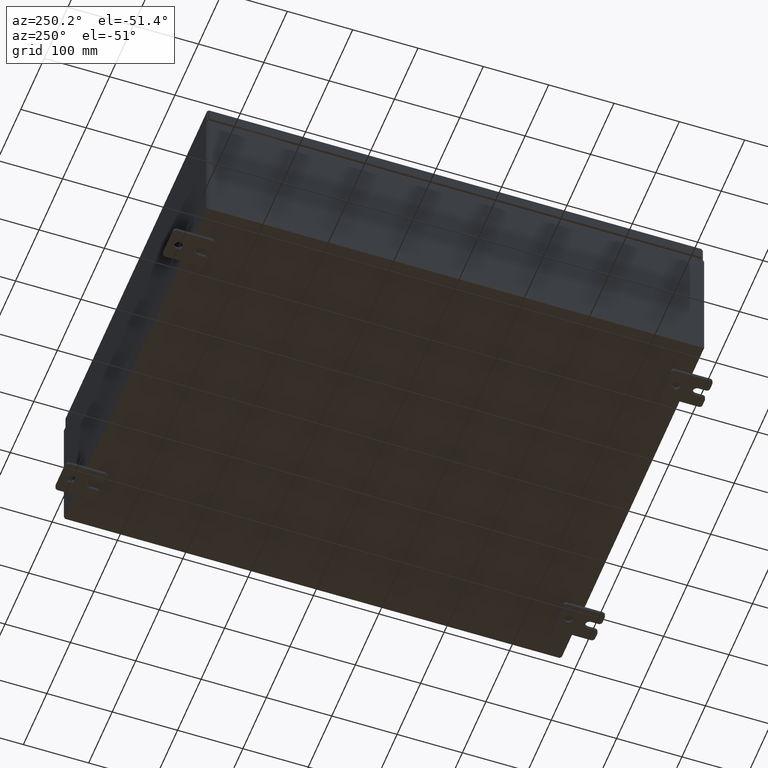
[diagram: clean part render]
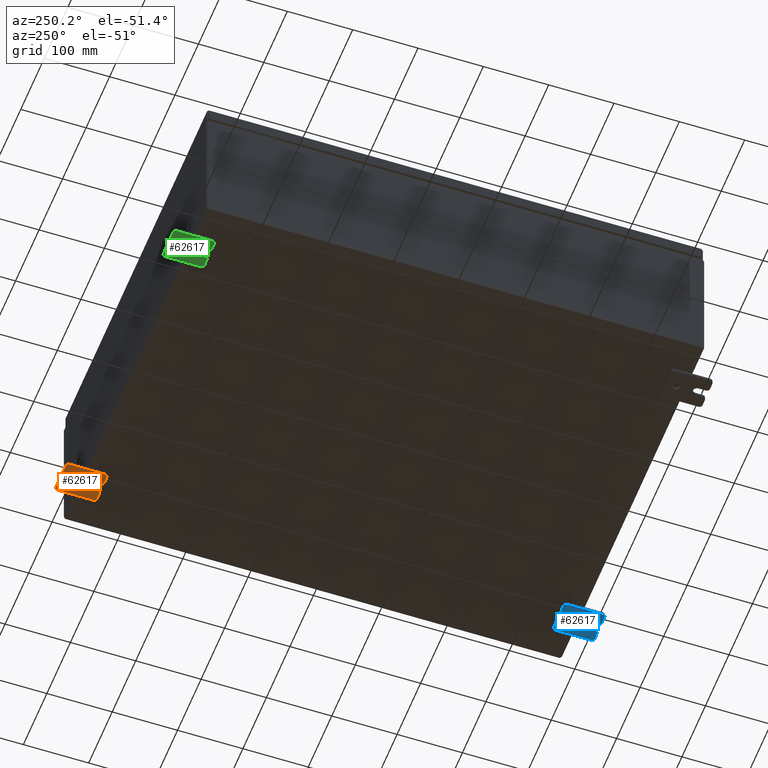
[diagram: same view with three faces highlighted in distinct colors, each labeled with its STEP entity id]
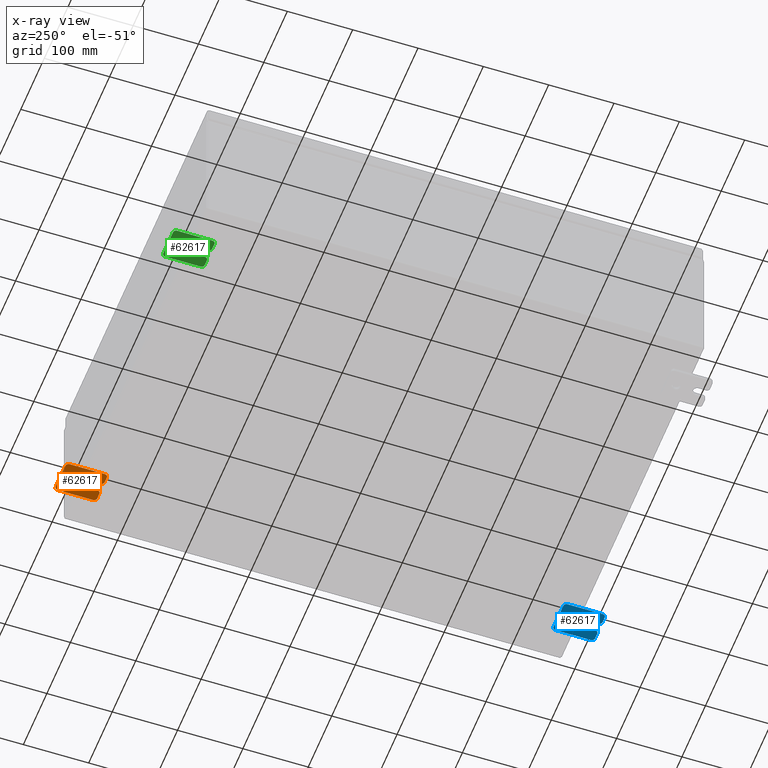
[diagram: x-ray of the same camera — body ghosted, the three highlighted faces saturated]
A machine part, auxiliary view with three faces highlighted in distinct colors.
The next image is the same camera in x-ray (body ghosted, the three faces saturated) — at least one of them is partly hidden behind the body in this view.
Their STEP definitions:

[orange] entity #62617 — the highlighted planar face has unit normal (0, 0, 1).
#1007 = VERTEX_POINT ( 'NONE', #50672 ) ;
#2225 = CARTESIAN_POINT ( 'NONE',  ( -0.1879999999999997800, -1.250000000000005300, -0.8100000000000047200 ) ) ;
#2516 = EDGE_CURVE ( 'NONE', #47488, #53210, #14438, .T. ) ;
#2639 = CARTESIAN_POINT ( 'NONE',  ( -0.1880000000000010000, 0.6249999999999992200, -7.703811342100550500E-020 ) ) ;
#2676 = LINE ( 'NONE', #61381, #29010 ) ;
#4414 = DIRECTION ( 'NONE',  ( 1.000000000000000000, 0.0000000000000000000, -0.0000000000000000000 ) ) ;
#4809 = DIRECTION ( 'NONE',  ( 0.0000000000000000000, 0.0000000000000000000, -1.000000000000000000 ) ) ;
#5173 = VECTOR ( 'NONE', #26957, 39.37007874015748100 ) ;
#5306 = ORIENTED_EDGE ( 'NONE', *, *, #18129, .T. ) ;
#7394 = EDGE_CURVE ( 'NONE', #47488, #57152, #41961, .T. ) ;
#7580 = ORIENTED_EDGE ( 'NONE', *, *, #7394, .F. ) ;
#7609 = DIRECTION ( 'NONE',  ( 0.0000000000000000000, 0.0000000000000000000, -1.000000000000000000 ) ) ;
#8769 = AXIS2_PLACEMENT_3D ( 'NONE', #56562, #26895, #61588 ) ;
#8836 = CIRCLE ( 'NONE', #17577, 0.1900000000000011100 ) ;
#9650 = CARTESIAN_POINT ( 'NONE',  ( -0.1879999999999997800, 1.249999999999994700, -0.8100000000000092700 ) ) ;
#9814 = LINE ( 'NONE', #56642, #5173 ) ;
#10873 = CARTESIAN_POINT ( 'NONE',  ( -0.1880000000000004700, -1.060000000000002100, 0.2500000000000005000 ) ) ;
#11141 = VERTEX_POINT ( 'NONE', #53411 ) ;
#12380 = CARTESIAN_POINT ( 'NONE',  ( -0.1880000000000004700, -1.060000000000003400, -0.2499999999999994400 ) ) ;
#12556 = EDGE_CURVE ( 'NONE', #63883, #53210, #41729, .T. ) ;
#12661 = VERTEX_POINT ( 'NONE', #54583 ) ;
#13274 = CARTESIAN_POINT ( 'NONE',  ( -0.1879999999999997800, -1.250000000000004700, -0.4400000000000002200 ) ) ;
#13285 = ORIENTED_EDGE ( 'NONE', *, *, #12556, .F. ) ;
#14295 = VECTOR ( 'NONE', #42339, 39.37007874015748100 ) ;
#14438 = CIRCLE ( 'NONE', #47600, 0.1900000000000011100 ) ;
#14565 = VERTEX_POINT ( 'NONE', #62106 ) ;
#15138 = VERTEX_POINT ( 'NONE', #36559 ) ;
#15191 = AXIS2_PLACEMENT_3D ( 'NONE', #53761, #4414, #38996 ) ;
#15707 = VECTOR ( 'NONE', #15777, 39.37007874015748100 ) ;
#15777 = DIRECTION ( 'NONE',  ( 0.0000000000000000000, 1.000000000000000000, -1.639108796198558100E-015 ) ) ;
#15941 = EDGE_CURVE ( 'NONE', #11141, #41435, #51791, .T. ) ;
#16320 = VERTEX_POINT ( 'NONE', #26924 ) ;
#16517 = CARTESIAN_POINT ( 'NONE',  ( -0.1879999999999997800, 1.249999999999997600, 0.9999999999999951200 ) ) ;
#16732 = ORIENTED_EDGE ( 'NONE', *, *, #29171, .F. ) ;
#17577 = AXIS2_PLACEMENT_3D ( 'NONE', #58009, #28290, #62989 ) ;
#18129 = EDGE_CURVE ( 'NONE', #25711, #14565, #55550, .T. ) ;
#18303 = DIRECTION ( 'NONE',  ( -1.000000000000000000, -0.0000000000000000000, 0.0000000000000000000 ) ) ;
#19077 = EDGE_CURVE ( 'NONE', #59416, #57152, #22175, .T. ) ;
#19525 = CARTESIAN_POINT ( 'NONE',  ( -0.1879999999999997800, 1.059999999999996300, 0.8099999999999938400 ) ) ;
#19680 = CARTESIAN_POINT ( 'NONE',  ( -0.1880000000000010000, 0.6249999999999992200, -7.703811342100550500E-020 ) ) ;
#20788 = VERTEX_POINT ( 'NONE', #12380 ) ;
#20830 = DIRECTION ( 'NONE',  ( -1.000000000000000000, 6.523827964459549700E-016, 5.163192708025532000E-017 ) ) ;
#20843 = CARTESIAN_POINT ( 'NONE',  ( -0.1879999999999997800, 1.249999999999997300, 0.8099999999999935000 ) ) ;
#21079 = VECTOR ( 'NONE', #21464, 39.37007874015748100 ) ;
#21304 = ORIENTED_EDGE ( 'NONE', *, *, #53263, .T. ) ;
#21317 = EDGE_CURVE ( 'NONE', #25711, #36538, #2676, .T. ) ;
#21464 = DIRECTION ( 'NONE',  ( 0.0000000000000000000, -1.000000000000000000, 1.639108796198558100E-015 ) ) ;
#21599 = CIRCLE ( 'NONE', #28476, 0.2499999999999999200 ) ;
#21857 = ORIENTED_EDGE ( 'NONE', *, *, #21317, .F. ) ;
#21893 = FACE_OUTER_BOUND ( 'NONE', #50632, .T. ) ;
#22160 = EDGE_CURVE ( 'NONE', #15138, #1007, #8836, .T. ) ;
#22175 = CIRCLE ( 'NONE', #8769, 0.1900000000000011100 ) ;
#24202 = ORIENTED_EDGE ( 'NONE', *, *, #62869, .F. ) ;
#24509 = DIRECTION ( 'NONE',  ( 0.0000000000000000000, 0.0000000000000000000, -1.000000000000000000 ) ) ;
#24667 = DIRECTION ( 'NONE',  ( 0.0000000000000000000, 0.0000000000000000000, -1.000000000000000000 ) ) ;
#25225 = ORIENTED_EDGE ( 'NONE', *, *, #22160, .T. ) ;
#25711 = VERTEX_POINT ( 'NONE', #10873 ) ;
#26080 = ORIENTED_EDGE ( 'NONE', *, *, #61835, .T. ) ;
#26895 = DIRECTION ( 'NONE',  ( -1.000000000000000000, -0.0000000000000000000, 0.0000000000000000000 ) ) ;
#26924 = CARTESIAN_POINT ( 'NONE',  ( -0.1880000000000001900, -0.6249999999999992200, -0.2499999999999998600 ) ) ;
#26957 = DIRECTION ( 'NONE',  ( 0.0000000000000000000, -1.639108796198553600E-015, -1.000000000000000000 ) ) ;
#27009 = CARTESIAN_POINT ( 'NONE',  ( -0.1879999999999997800, -1.250000000000005600, -1.000000000000006200 ) ) ;
#28290 = DIRECTION ( 'NONE',  ( -1.000000000000000000, -0.0000000000000000000, 0.0000000000000000000 ) ) ;
#28476 = AXIS2_PLACEMENT_3D ( 'NONE', #2639, #37231, #7609 ) ;
#29010 = VECTOR ( 'NONE', #31657, 39.37007874015748100 ) ;
#29171 = EDGE_CURVE ( 'NONE', #15138, #14565, #9814, .T. ) ;
#29236 = DIRECTION ( 'NONE',  ( 0.0000000000000000000, -1.639108796198553600E-015, -1.000000000000000000 ) ) ;
#30294 = ORIENTED_EDGE ( 'NONE', *, *, #2516, .T. ) ;
#30743 = ORIENTED_EDGE ( 'NONE', *, *, #63049, .F. ) ;
#31656 = CARTESIAN_POINT ( 'NONE',  ( -0.1880000000000010000, 0.6249999999999992200, 0.2499999999999999200 ) ) ;
#31657 = DIRECTION ( 'NONE',  ( 6.556435184794182400E-016, 1.000000000000000000, 0.0000000000000000000 ) ) ;
#32814 = AXIS2_PLACEMENT_3D ( 'NONE', #64140, #34405, #4809 ) ;
#33956 = EDGE_LOOP ( 'NONE', ( #37530, #21304 ) ) ;
#34226 = DIRECTION ( 'NONE',  ( -1.000000000000000000, -0.0000000000000000000, 0.0000000000000000000 ) ) ;
#34335 = EDGE_CURVE ( 'NONE', #59416, #48243, #62149, .T. ) ;
#34405 = DIRECTION ( 'NONE',  ( -1.000000000000000000, -0.0000000000000000000, 0.0000000000000000000 ) ) ;
#35183 = CARTESIAN_POINT ( 'NONE',  ( -0.1879999999999997800, -1.060000000000004500, -1.000000000000006400 ) ) ;
#36538 = VERTEX_POINT ( 'NONE', #44062 ) ;
#36559 = CARTESIAN_POINT ( 'NONE',  ( -0.1879999999999997800, -1.250000000000002400, 0.8099999999999980500 ) ) ;
#37231 = DIRECTION ( 'NONE',  ( 1.000000000000000000, -0.0000000000000000000, -5.163192708025532000E-017 ) ) ;
#37327 = CARTESIAN_POINT ( 'NONE',  ( -0.1880000000000001900, -0.6249999999999992200, -0.2499999999999993900 ) ) ;
#37530 = ORIENTED_EDGE ( 'NONE', *, *, #15941, .T. ) ;
#38309 = AXIS2_PLACEMENT_3D ( 'NONE', #50483, #20830, #55480 ) ;
#38494 = AXIS2_PLACEMENT_3D ( 'NONE', #19680, #54329, #24667 ) ;
#38769 = ORIENTED_EDGE ( 'NONE', *, *, #46609, .T. ) ;
#38996 = DIRECTION ( 'NONE',  ( -0.0000000000000000000, 0.0000000000000000000, -1.000000000000000000 ) ) ;
#40557 = LINE ( 'NONE', #37327, #14295 ) ;
#41230 = CARTESIAN_POINT ( 'NONE',  ( -0.1879999999999997800, 1.059999999999993400, -1.000000000000010000 ) ) ;
#41435 = VERTEX_POINT ( 'NONE', #31656 ) ;
#41729 = LINE ( 'NONE', #54137, #54951 ) ;
#41961 = LINE ( 'NONE', #27009, #15707 ) ;
#42036 = AXIS2_PLACEMENT_3D ( 'NONE', #19525, #54173, #24509 ) ;
#42339 = DIRECTION ( 'NONE',  ( -6.556435184794182400E-016, -1.000000000000000000, -1.639108796198545600E-016 ) ) ;
#43147 = ORIENTED_EDGE ( 'NONE', *, *, #19077, .T. ) ;
#44062 = CARTESIAN_POINT ( 'NONE',  ( -0.1880000000000001900, -0.6249999999999992200, 0.2500000000000005000 ) ) ;
#45919 = CIRCLE ( 'NONE', #32814, 0.1900000000000011100 ) ;
#46278 = ORIENTED_EDGE ( 'NONE', *, *, #34335, .F. ) ;
#46609 = EDGE_CURVE ( 'NONE', #63883, #20788, #45919, .T. ) ;
#46729 = CIRCLE ( 'NONE', #42036, 0.1900000000000011100 ) ;
#47408 = LINE ( 'NONE', #16517, #21079 ) ;
#47488 = VERTEX_POINT ( 'NONE', #35183 ) ;
#47600 = AXIS2_PLACEMENT_3D ( 'NONE', #60352, #34226, #52341 ) ;
#47979 = CARTESIAN_POINT ( 'NONE',  ( -0.1879999999999997800, -1.060000000000002100, 0.4400000000000016700 ) ) ;
#48243 = VERTEX_POINT ( 'NONE', #20843 ) ;
#48944 = VECTOR ( 'NONE', #48948, 39.37007874015748100 ) ;
#48948 = DIRECTION ( 'NONE',  ( 0.0000000000000000000, 1.639108796198553600E-015, 1.000000000000000000 ) ) ;
#50483 = CARTESIAN_POINT ( 'NONE',  ( -0.1880000000000001900, -0.6249999999999992200, 6.829619984160658000E-017 ) ) ;
#50632 = EDGE_LOOP ( 'NONE', ( #16732, #25225, #30743, #26080, #46278, #43147, #7580, #30294, #13285, #38769, #55910, #24202, #21857, #5306 ) ) ;
#50672 = CARTESIAN_POINT ( 'NONE',  ( -0.1879999999999997800, -1.060000000000001200, 0.9999999999999988900 ) ) ;
#51791 = CIRCLE ( 'NONE', #38494, 0.2499999999999999200 ) ;
#52075 = CIRCLE ( 'NONE', #38309, 0.2499999999999999200 ) ;
#52341 = DIRECTION ( 'NONE',  ( 0.0000000000000000000, 0.0000000000000000000, -1.000000000000000000 ) ) ;
#52962 = DIRECTION ( 'NONE',  ( 0.0000000000000000000, 0.0000000000000000000, -1.000000000000000000 ) ) ;
#53210 = VERTEX_POINT ( 'NONE', #2225 ) ;
#53263 = EDGE_CURVE ( 'NONE', #41435, #11141, #21599, .T. ) ;
#53411 = CARTESIAN_POINT ( 'NONE',  ( -0.1880000000000010000, 0.6249999999999992200, -0.2499999999999999200 ) ) ;
#53761 = CARTESIAN_POINT ( 'NONE',  ( -0.1879999999999997800, 0.0000000000000000000, 0.0000000000000000000 ) ) ;
#53927 = CARTESIAN_POINT ( 'NONE',  ( -0.1879999999999997800, 1.249999999999994200, -1.000000000000010400 ) ) ;
#54137 = CARTESIAN_POINT ( 'NONE',  ( -0.1879999999999997800, -1.250000000000002200, 0.9999999999999992200 ) ) ;
#54173 = DIRECTION ( 'NONE',  ( -1.000000000000000000, -0.0000000000000000000, 0.0000000000000000000 ) ) ;
#54329 = DIRECTION ( 'NONE',  ( 1.000000000000000000, -0.0000000000000000000, -5.163192708025532000E-017 ) ) ;
#54583 = CARTESIAN_POINT ( 'NONE',  ( -0.1879999999999997800, 1.059999999999996500, 0.9999999999999953400 ) ) ;
#54951 = VECTOR ( 'NONE', #29236, 39.37007874015748100 ) ;
#55480 = DIRECTION ( 'NONE',  ( -6.829619984160660000E-016, -1.000000000000000000, 0.0000000000000000000 ) ) ;
#55550 = CIRCLE ( 'NONE', #55627, 0.1900000000000011400 ) ;
#55627 = AXIS2_PLACEMENT_3D ( 'NONE', #47979, #18303, #52962 ) ;
#55910 = ORIENTED_EDGE ( 'NONE', *, *, #59083, .F. ) ;
#56562 = CARTESIAN_POINT ( 'NONE',  ( -0.1879999999999997800, 1.059999999999993600, -0.8100000000000089400 ) ) ;
#56642 = CARTESIAN_POINT ( 'NONE',  ( -0.1879999999999997800, -1.250000000000002200, 0.9999999999999992200 ) ) ;
#57152 = VERTEX_POINT ( 'NONE', #41230 ) ;
#58009 = CARTESIAN_POINT ( 'NONE',  ( -0.1879999999999997800, -1.060000000000001600, 0.8099999999999978300 ) ) ;
#59083 = EDGE_CURVE ( 'NONE', #16320, #20788, #40557, .T. ) ;
#59416 = VERTEX_POINT ( 'NONE', #9650 ) ;
#60352 = CARTESIAN_POINT ( 'NONE',  ( -0.1879999999999997800, -1.060000000000004100, -0.8100000000000050500 ) ) ;
#61381 = CARTESIAN_POINT ( 'NONE',  ( -0.1880000000000005800, -1.250000000000003800, 0.2500000000000005000 ) ) ;
#61588 = DIRECTION ( 'NONE',  ( 0.0000000000000000000, 0.0000000000000000000, -1.000000000000000000 ) ) ;
#61835 = EDGE_CURVE ( 'NONE', #12661, #48243, #46729, .T. ) ;
#62106 = CARTESIAN_POINT ( 'NONE',  ( -0.1879999999999997800, -1.250000000000003100, 0.4400000000000020000 ) ) ;
#62149 = LINE ( 'NONE', #53927, #48944 ) ;
#62617 = ADVANCED_FACE ( 'NONE', ( #63002, #21893 ), #63756, .F. ) ;
#62869 = EDGE_CURVE ( 'NONE', #36538, #16320, #52075, .T. ) ;
#62989 = DIRECTION ( 'NONE',  ( 0.0000000000000000000, 7.189073667537492800E-016, -1.000000000000000000 ) ) ;
#63002 = FACE_BOUND ( 'NONE', #33956, .T. ) ;
#63049 = EDGE_CURVE ( 'NONE', #12661, #1007, #47408, .T. ) ;
#63756 = PLANE ( 'NONE',  #15191 ) ;
#63883 = VERTEX_POINT ( 'NONE', #13274 ) ;
#64140 = CARTESIAN_POINT ( 'NONE',  ( -0.1879999999999997800, -1.060000000000003400, -0.4400000000000005000 ) ) ;

[blue] entity #62617 — the highlighted planar face has unit normal (0, 0, 1).
#1007 = VERTEX_POINT ( 'NONE', #50672 ) ;
#2225 = CARTESIAN_POINT ( 'NONE',  ( -0.1879999999999997800, -1.250000000000005300, -0.8100000000000047200 ) ) ;
#2516 = EDGE_CURVE ( 'NONE', #47488, #53210, #14438, .T. ) ;
#2639 = CARTESIAN_POINT ( 'NONE',  ( -0.1880000000000010000, 0.6249999999999992200, -7.703811342100550500E-020 ) ) ;
#2676 = LINE ( 'NONE', #61381, #29010 ) ;
#4414 = DIRECTION ( 'NONE',  ( 1.000000000000000000, 0.0000000000000000000, -0.0000000000000000000 ) ) ;
#4809 = DIRECTION ( 'NONE',  ( 0.0000000000000000000, 0.0000000000000000000, -1.000000000000000000 ) ) ;
#5173 = VECTOR ( 'NONE', #26957, 39.37007874015748100 ) ;
#5306 = ORIENTED_EDGE ( 'NONE', *, *, #18129, .T. ) ;
#7394 = EDGE_CURVE ( 'NONE', #47488, #57152, #41961, .T. ) ;
#7580 = ORIENTED_EDGE ( 'NONE', *, *, #7394, .F. ) ;
#7609 = DIRECTION ( 'NONE',  ( 0.0000000000000000000, 0.0000000000000000000, -1.000000000000000000 ) ) ;
#8769 = AXIS2_PLACEMENT_3D ( 'NONE', #56562, #26895, #61588 ) ;
#8836 = CIRCLE ( 'NONE', #17577, 0.1900000000000011100 ) ;
#9650 = CARTESIAN_POINT ( 'NONE',  ( -0.1879999999999997800, 1.249999999999994700, -0.8100000000000092700 ) ) ;
#9814 = LINE ( 'NONE', #56642, #5173 ) ;
#10873 = CARTESIAN_POINT ( 'NONE',  ( -0.1880000000000004700, -1.060000000000002100, 0.2500000000000005000 ) ) ;
#11141 = VERTEX_POINT ( 'NONE', #53411 ) ;
#12380 = CARTESIAN_POINT ( 'NONE',  ( -0.1880000000000004700, -1.060000000000003400, -0.2499999999999994400 ) ) ;
#12556 = EDGE_CURVE ( 'NONE', #63883, #53210, #41729, .T. ) ;
#12661 = VERTEX_POINT ( 'NONE', #54583 ) ;
#13274 = CARTESIAN_POINT ( 'NONE',  ( -0.1879999999999997800, -1.250000000000004700, -0.4400000000000002200 ) ) ;
#13285 = ORIENTED_EDGE ( 'NONE', *, *, #12556, .F. ) ;
#14295 = VECTOR ( 'NONE', #42339, 39.37007874015748100 ) ;
#14438 = CIRCLE ( 'NONE', #47600, 0.1900000000000011100 ) ;
#14565 = VERTEX_POINT ( 'NONE', #62106 ) ;
#15138 = VERTEX_POINT ( 'NONE', #36559 ) ;
#15191 = AXIS2_PLACEMENT_3D ( 'NONE', #53761, #4414, #38996 ) ;
#15707 = VECTOR ( 'NONE', #15777, 39.37007874015748100 ) ;
#15777 = DIRECTION ( 'NONE',  ( 0.0000000000000000000, 1.000000000000000000, -1.639108796198558100E-015 ) ) ;
#15941 = EDGE_CURVE ( 'NONE', #11141, #41435, #51791, .T. ) ;
#16320 = VERTEX_POINT ( 'NONE', #26924 ) ;
#16517 = CARTESIAN_POINT ( 'NONE',  ( -0.1879999999999997800, 1.249999999999997600, 0.9999999999999951200 ) ) ;
#16732 = ORIENTED_EDGE ( 'NONE', *, *, #29171, .F. ) ;
#17577 = AXIS2_PLACEMENT_3D ( 'NONE', #58009, #28290, #62989 ) ;
#18129 = EDGE_CURVE ( 'NONE', #25711, #14565, #55550, .T. ) ;
#18303 = DIRECTION ( 'NONE',  ( -1.000000000000000000, -0.0000000000000000000, 0.0000000000000000000 ) ) ;
#19077 = EDGE_CURVE ( 'NONE', #59416, #57152, #22175, .T. ) ;
#19525 = CARTESIAN_POINT ( 'NONE',  ( -0.1879999999999997800, 1.059999999999996300, 0.8099999999999938400 ) ) ;
#19680 = CARTESIAN_POINT ( 'NONE',  ( -0.1880000000000010000, 0.6249999999999992200, -7.703811342100550500E-020 ) ) ;
#20788 = VERTEX_POINT ( 'NONE', #12380 ) ;
#20830 = DIRECTION ( 'NONE',  ( -1.000000000000000000, 6.523827964459549700E-016, 5.163192708025532000E-017 ) ) ;
#20843 = CARTESIAN_POINT ( 'NONE',  ( -0.1879999999999997800, 1.249999999999997300, 0.8099999999999935000 ) ) ;
#21079 = VECTOR ( 'NONE', #21464, 39.37007874015748100 ) ;
#21304 = ORIENTED_EDGE ( 'NONE', *, *, #53263, .T. ) ;
#21317 = EDGE_CURVE ( 'NONE', #25711, #36538, #2676, .T. ) ;
#21464 = DIRECTION ( 'NONE',  ( 0.0000000000000000000, -1.000000000000000000, 1.639108796198558100E-015 ) ) ;
#21599 = CIRCLE ( 'NONE', #28476, 0.2499999999999999200 ) ;
#21857 = ORIENTED_EDGE ( 'NONE', *, *, #21317, .F. ) ;
#21893 = FACE_OUTER_BOUND ( 'NONE', #50632, .T. ) ;
#22160 = EDGE_CURVE ( 'NONE', #15138, #1007, #8836, .T. ) ;
#22175 = CIRCLE ( 'NONE', #8769, 0.1900000000000011100 ) ;
#24202 = ORIENTED_EDGE ( 'NONE', *, *, #62869, .F. ) ;
#24509 = DIRECTION ( 'NONE',  ( 0.0000000000000000000, 0.0000000000000000000, -1.000000000000000000 ) ) ;
#24667 = DIRECTION ( 'NONE',  ( 0.0000000000000000000, 0.0000000000000000000, -1.000000000000000000 ) ) ;
#25225 = ORIENTED_EDGE ( 'NONE', *, *, #22160, .T. ) ;
#25711 = VERTEX_POINT ( 'NONE', #10873 ) ;
#26080 = ORIENTED_EDGE ( 'NONE', *, *, #61835, .T. ) ;
#26895 = DIRECTION ( 'NONE',  ( -1.000000000000000000, -0.0000000000000000000, 0.0000000000000000000 ) ) ;
#26924 = CARTESIAN_POINT ( 'NONE',  ( -0.1880000000000001900, -0.6249999999999992200, -0.2499999999999998600 ) ) ;
#26957 = DIRECTION ( 'NONE',  ( 0.0000000000000000000, -1.639108796198553600E-015, -1.000000000000000000 ) ) ;
#27009 = CARTESIAN_POINT ( 'NONE',  ( -0.1879999999999997800, -1.250000000000005600, -1.000000000000006200 ) ) ;
#28290 = DIRECTION ( 'NONE',  ( -1.000000000000000000, -0.0000000000000000000, 0.0000000000000000000 ) ) ;
#28476 = AXIS2_PLACEMENT_3D ( 'NONE', #2639, #37231, #7609 ) ;
#29010 = VECTOR ( 'NONE', #31657, 39.37007874015748100 ) ;
#29171 = EDGE_CURVE ( 'NONE', #15138, #14565, #9814, .T. ) ;
#29236 = DIRECTION ( 'NONE',  ( 0.0000000000000000000, -1.639108796198553600E-015, -1.000000000000000000 ) ) ;
#30294 = ORIENTED_EDGE ( 'NONE', *, *, #2516, .T. ) ;
#30743 = ORIENTED_EDGE ( 'NONE', *, *, #63049, .F. ) ;
#31656 = CARTESIAN_POINT ( 'NONE',  ( -0.1880000000000010000, 0.6249999999999992200, 0.2499999999999999200 ) ) ;
#31657 = DIRECTION ( 'NONE',  ( 6.556435184794182400E-016, 1.000000000000000000, 0.0000000000000000000 ) ) ;
#32814 = AXIS2_PLACEMENT_3D ( 'NONE', #64140, #34405, #4809 ) ;
#33956 = EDGE_LOOP ( 'NONE', ( #37530, #21304 ) ) ;
#34226 = DIRECTION ( 'NONE',  ( -1.000000000000000000, -0.0000000000000000000, 0.0000000000000000000 ) ) ;
#34335 = EDGE_CURVE ( 'NONE', #59416, #48243, #62149, .T. ) ;
#34405 = DIRECTION ( 'NONE',  ( -1.000000000000000000, -0.0000000000000000000, 0.0000000000000000000 ) ) ;
#35183 = CARTESIAN_POINT ( 'NONE',  ( -0.1879999999999997800, -1.060000000000004500, -1.000000000000006400 ) ) ;
#36538 = VERTEX_POINT ( 'NONE', #44062 ) ;
#36559 = CARTESIAN_POINT ( 'NONE',  ( -0.1879999999999997800, -1.250000000000002400, 0.8099999999999980500 ) ) ;
#37231 = DIRECTION ( 'NONE',  ( 1.000000000000000000, -0.0000000000000000000, -5.163192708025532000E-017 ) ) ;
#37327 = CARTESIAN_POINT ( 'NONE',  ( -0.1880000000000001900, -0.6249999999999992200, -0.2499999999999993900 ) ) ;
#37530 = ORIENTED_EDGE ( 'NONE', *, *, #15941, .T. ) ;
#38309 = AXIS2_PLACEMENT_3D ( 'NONE', #50483, #20830, #55480 ) ;
#38494 = AXIS2_PLACEMENT_3D ( 'NONE', #19680, #54329, #24667 ) ;
#38769 = ORIENTED_EDGE ( 'NONE', *, *, #46609, .T. ) ;
#38996 = DIRECTION ( 'NONE',  ( -0.0000000000000000000, 0.0000000000000000000, -1.000000000000000000 ) ) ;
#40557 = LINE ( 'NONE', #37327, #14295 ) ;
#41230 = CARTESIAN_POINT ( 'NONE',  ( -0.1879999999999997800, 1.059999999999993400, -1.000000000000010000 ) ) ;
#41435 = VERTEX_POINT ( 'NONE', #31656 ) ;
#41729 = LINE ( 'NONE', #54137, #54951 ) ;
#41961 = LINE ( 'NONE', #27009, #15707 ) ;
#42036 = AXIS2_PLACEMENT_3D ( 'NONE', #19525, #54173, #24509 ) ;
#42339 = DIRECTION ( 'NONE',  ( -6.556435184794182400E-016, -1.000000000000000000, -1.639108796198545600E-016 ) ) ;
#43147 = ORIENTED_EDGE ( 'NONE', *, *, #19077, .T. ) ;
#44062 = CARTESIAN_POINT ( 'NONE',  ( -0.1880000000000001900, -0.6249999999999992200, 0.2500000000000005000 ) ) ;
#45919 = CIRCLE ( 'NONE', #32814, 0.1900000000000011100 ) ;
#46278 = ORIENTED_EDGE ( 'NONE', *, *, #34335, .F. ) ;
#46609 = EDGE_CURVE ( 'NONE', #63883, #20788, #45919, .T. ) ;
#46729 = CIRCLE ( 'NONE', #42036, 0.1900000000000011100 ) ;
#47408 = LINE ( 'NONE', #16517, #21079 ) ;
#47488 = VERTEX_POINT ( 'NONE', #35183 ) ;
#47600 = AXIS2_PLACEMENT_3D ( 'NONE', #60352, #34226, #52341 ) ;
#47979 = CARTESIAN_POINT ( 'NONE',  ( -0.1879999999999997800, -1.060000000000002100, 0.4400000000000016700 ) ) ;
#48243 = VERTEX_POINT ( 'NONE', #20843 ) ;
#48944 = VECTOR ( 'NONE', #48948, 39.37007874015748100 ) ;
#48948 = DIRECTION ( 'NONE',  ( 0.0000000000000000000, 1.639108796198553600E-015, 1.000000000000000000 ) ) ;
#50483 = CARTESIAN_POINT ( 'NONE',  ( -0.1880000000000001900, -0.6249999999999992200, 6.829619984160658000E-017 ) ) ;
#50632 = EDGE_LOOP ( 'NONE', ( #16732, #25225, #30743, #26080, #46278, #43147, #7580, #30294, #13285, #38769, #55910, #24202, #21857, #5306 ) ) ;
#50672 = CARTESIAN_POINT ( 'NONE',  ( -0.1879999999999997800, -1.060000000000001200, 0.9999999999999988900 ) ) ;
#51791 = CIRCLE ( 'NONE', #38494, 0.2499999999999999200 ) ;
#52075 = CIRCLE ( 'NONE', #38309, 0.2499999999999999200 ) ;
#52341 = DIRECTION ( 'NONE',  ( 0.0000000000000000000, 0.0000000000000000000, -1.000000000000000000 ) ) ;
#52962 = DIRECTION ( 'NONE',  ( 0.0000000000000000000, 0.0000000000000000000, -1.000000000000000000 ) ) ;
#53210 = VERTEX_POINT ( 'NONE', #2225 ) ;
#53263 = EDGE_CURVE ( 'NONE', #41435, #11141, #21599, .T. ) ;
#53411 = CARTESIAN_POINT ( 'NONE',  ( -0.1880000000000010000, 0.6249999999999992200, -0.2499999999999999200 ) ) ;
#53761 = CARTESIAN_POINT ( 'NONE',  ( -0.1879999999999997800, 0.0000000000000000000, 0.0000000000000000000 ) ) ;
#53927 = CARTESIAN_POINT ( 'NONE',  ( -0.1879999999999997800, 1.249999999999994200, -1.000000000000010400 ) ) ;
#54137 = CARTESIAN_POINT ( 'NONE',  ( -0.1879999999999997800, -1.250000000000002200, 0.9999999999999992200 ) ) ;
#54173 = DIRECTION ( 'NONE',  ( -1.000000000000000000, -0.0000000000000000000, 0.0000000000000000000 ) ) ;
#54329 = DIRECTION ( 'NONE',  ( 1.000000000000000000, -0.0000000000000000000, -5.163192708025532000E-017 ) ) ;
#54583 = CARTESIAN_POINT ( 'NONE',  ( -0.1879999999999997800, 1.059999999999996500, 0.9999999999999953400 ) ) ;
#54951 = VECTOR ( 'NONE', #29236, 39.37007874015748100 ) ;
#55480 = DIRECTION ( 'NONE',  ( -6.829619984160660000E-016, -1.000000000000000000, 0.0000000000000000000 ) ) ;
#55550 = CIRCLE ( 'NONE', #55627, 0.1900000000000011400 ) ;
#55627 = AXIS2_PLACEMENT_3D ( 'NONE', #47979, #18303, #52962 ) ;
#55910 = ORIENTED_EDGE ( 'NONE', *, *, #59083, .F. ) ;
#56562 = CARTESIAN_POINT ( 'NONE',  ( -0.1879999999999997800, 1.059999999999993600, -0.8100000000000089400 ) ) ;
#56642 = CARTESIAN_POINT ( 'NONE',  ( -0.1879999999999997800, -1.250000000000002200, 0.9999999999999992200 ) ) ;
#57152 = VERTEX_POINT ( 'NONE', #41230 ) ;
#58009 = CARTESIAN_POINT ( 'NONE',  ( -0.1879999999999997800, -1.060000000000001600, 0.8099999999999978300 ) ) ;
#59083 = EDGE_CURVE ( 'NONE', #16320, #20788, #40557, .T. ) ;
#59416 = VERTEX_POINT ( 'NONE', #9650 ) ;
#60352 = CARTESIAN_POINT ( 'NONE',  ( -0.1879999999999997800, -1.060000000000004100, -0.8100000000000050500 ) ) ;
#61381 = CARTESIAN_POINT ( 'NONE',  ( -0.1880000000000005800, -1.250000000000003800, 0.2500000000000005000 ) ) ;
#61588 = DIRECTION ( 'NONE',  ( 0.0000000000000000000, 0.0000000000000000000, -1.000000000000000000 ) ) ;
#61835 = EDGE_CURVE ( 'NONE', #12661, #48243, #46729, .T. ) ;
#62106 = CARTESIAN_POINT ( 'NONE',  ( -0.1879999999999997800, -1.250000000000003100, 0.4400000000000020000 ) ) ;
#62149 = LINE ( 'NONE', #53927, #48944 ) ;
#62617 = ADVANCED_FACE ( 'NONE', ( #63002, #21893 ), #63756, .F. ) ;
#62869 = EDGE_CURVE ( 'NONE', #36538, #16320, #52075, .T. ) ;
#62989 = DIRECTION ( 'NONE',  ( 0.0000000000000000000, 7.189073667537492800E-016, -1.000000000000000000 ) ) ;
#63002 = FACE_BOUND ( 'NONE', #33956, .T. ) ;
#63049 = EDGE_CURVE ( 'NONE', #12661, #1007, #47408, .T. ) ;
#63756 = PLANE ( 'NONE',  #15191 ) ;
#63883 = VERTEX_POINT ( 'NONE', #13274 ) ;
#64140 = CARTESIAN_POINT ( 'NONE',  ( -0.1879999999999997800, -1.060000000000003400, -0.4400000000000005000 ) ) ;

[green] entity #62617 — the highlighted planar face has unit normal (0, 0, 1).
#1007 = VERTEX_POINT ( 'NONE', #50672 ) ;
#2225 = CARTESIAN_POINT ( 'NONE',  ( -0.1879999999999997800, -1.250000000000005300, -0.8100000000000047200 ) ) ;
#2516 = EDGE_CURVE ( 'NONE', #47488, #53210, #14438, .T. ) ;
#2639 = CARTESIAN_POINT ( 'NONE',  ( -0.1880000000000010000, 0.6249999999999992200, -7.703811342100550500E-020 ) ) ;
#2676 = LINE ( 'NONE', #61381, #29010 ) ;
#4414 = DIRECTION ( 'NONE',  ( 1.000000000000000000, 0.0000000000000000000, -0.0000000000000000000 ) ) ;
#4809 = DIRECTION ( 'NONE',  ( 0.0000000000000000000, 0.0000000000000000000, -1.000000000000000000 ) ) ;
#5173 = VECTOR ( 'NONE', #26957, 39.37007874015748100 ) ;
#5306 = ORIENTED_EDGE ( 'NONE', *, *, #18129, .T. ) ;
#7394 = EDGE_CURVE ( 'NONE', #47488, #57152, #41961, .T. ) ;
#7580 = ORIENTED_EDGE ( 'NONE', *, *, #7394, .F. ) ;
#7609 = DIRECTION ( 'NONE',  ( 0.0000000000000000000, 0.0000000000000000000, -1.000000000000000000 ) ) ;
#8769 = AXIS2_PLACEMENT_3D ( 'NONE', #56562, #26895, #61588 ) ;
#8836 = CIRCLE ( 'NONE', #17577, 0.1900000000000011100 ) ;
#9650 = CARTESIAN_POINT ( 'NONE',  ( -0.1879999999999997800, 1.249999999999994700, -0.8100000000000092700 ) ) ;
#9814 = LINE ( 'NONE', #56642, #5173 ) ;
#10873 = CARTESIAN_POINT ( 'NONE',  ( -0.1880000000000004700, -1.060000000000002100, 0.2500000000000005000 ) ) ;
#11141 = VERTEX_POINT ( 'NONE', #53411 ) ;
#12380 = CARTESIAN_POINT ( 'NONE',  ( -0.1880000000000004700, -1.060000000000003400, -0.2499999999999994400 ) ) ;
#12556 = EDGE_CURVE ( 'NONE', #63883, #53210, #41729, .T. ) ;
#12661 = VERTEX_POINT ( 'NONE', #54583 ) ;
#13274 = CARTESIAN_POINT ( 'NONE',  ( -0.1879999999999997800, -1.250000000000004700, -0.4400000000000002200 ) ) ;
#13285 = ORIENTED_EDGE ( 'NONE', *, *, #12556, .F. ) ;
#14295 = VECTOR ( 'NONE', #42339, 39.37007874015748100 ) ;
#14438 = CIRCLE ( 'NONE', #47600, 0.1900000000000011100 ) ;
#14565 = VERTEX_POINT ( 'NONE', #62106 ) ;
#15138 = VERTEX_POINT ( 'NONE', #36559 ) ;
#15191 = AXIS2_PLACEMENT_3D ( 'NONE', #53761, #4414, #38996 ) ;
#15707 = VECTOR ( 'NONE', #15777, 39.37007874015748100 ) ;
#15777 = DIRECTION ( 'NONE',  ( 0.0000000000000000000, 1.000000000000000000, -1.639108796198558100E-015 ) ) ;
#15941 = EDGE_CURVE ( 'NONE', #11141, #41435, #51791, .T. ) ;
#16320 = VERTEX_POINT ( 'NONE', #26924 ) ;
#16517 = CARTESIAN_POINT ( 'NONE',  ( -0.1879999999999997800, 1.249999999999997600, 0.9999999999999951200 ) ) ;
#16732 = ORIENTED_EDGE ( 'NONE', *, *, #29171, .F. ) ;
#17577 = AXIS2_PLACEMENT_3D ( 'NONE', #58009, #28290, #62989 ) ;
#18129 = EDGE_CURVE ( 'NONE', #25711, #14565, #55550, .T. ) ;
#18303 = DIRECTION ( 'NONE',  ( -1.000000000000000000, -0.0000000000000000000, 0.0000000000000000000 ) ) ;
#19077 = EDGE_CURVE ( 'NONE', #59416, #57152, #22175, .T. ) ;
#19525 = CARTESIAN_POINT ( 'NONE',  ( -0.1879999999999997800, 1.059999999999996300, 0.8099999999999938400 ) ) ;
#19680 = CARTESIAN_POINT ( 'NONE',  ( -0.1880000000000010000, 0.6249999999999992200, -7.703811342100550500E-020 ) ) ;
#20788 = VERTEX_POINT ( 'NONE', #12380 ) ;
#20830 = DIRECTION ( 'NONE',  ( -1.000000000000000000, 6.523827964459549700E-016, 5.163192708025532000E-017 ) ) ;
#20843 = CARTESIAN_POINT ( 'NONE',  ( -0.1879999999999997800, 1.249999999999997300, 0.8099999999999935000 ) ) ;
#21079 = VECTOR ( 'NONE', #21464, 39.37007874015748100 ) ;
#21304 = ORIENTED_EDGE ( 'NONE', *, *, #53263, .T. ) ;
#21317 = EDGE_CURVE ( 'NONE', #25711, #36538, #2676, .T. ) ;
#21464 = DIRECTION ( 'NONE',  ( 0.0000000000000000000, -1.000000000000000000, 1.639108796198558100E-015 ) ) ;
#21599 = CIRCLE ( 'NONE', #28476, 0.2499999999999999200 ) ;
#21857 = ORIENTED_EDGE ( 'NONE', *, *, #21317, .F. ) ;
#21893 = FACE_OUTER_BOUND ( 'NONE', #50632, .T. ) ;
#22160 = EDGE_CURVE ( 'NONE', #15138, #1007, #8836, .T. ) ;
#22175 = CIRCLE ( 'NONE', #8769, 0.1900000000000011100 ) ;
#24202 = ORIENTED_EDGE ( 'NONE', *, *, #62869, .F. ) ;
#24509 = DIRECTION ( 'NONE',  ( 0.0000000000000000000, 0.0000000000000000000, -1.000000000000000000 ) ) ;
#24667 = DIRECTION ( 'NONE',  ( 0.0000000000000000000, 0.0000000000000000000, -1.000000000000000000 ) ) ;
#25225 = ORIENTED_EDGE ( 'NONE', *, *, #22160, .T. ) ;
#25711 = VERTEX_POINT ( 'NONE', #10873 ) ;
#26080 = ORIENTED_EDGE ( 'NONE', *, *, #61835, .T. ) ;
#26895 = DIRECTION ( 'NONE',  ( -1.000000000000000000, -0.0000000000000000000, 0.0000000000000000000 ) ) ;
#26924 = CARTESIAN_POINT ( 'NONE',  ( -0.1880000000000001900, -0.6249999999999992200, -0.2499999999999998600 ) ) ;
#26957 = DIRECTION ( 'NONE',  ( 0.0000000000000000000, -1.639108796198553600E-015, -1.000000000000000000 ) ) ;
#27009 = CARTESIAN_POINT ( 'NONE',  ( -0.1879999999999997800, -1.250000000000005600, -1.000000000000006200 ) ) ;
#28290 = DIRECTION ( 'NONE',  ( -1.000000000000000000, -0.0000000000000000000, 0.0000000000000000000 ) ) ;
#28476 = AXIS2_PLACEMENT_3D ( 'NONE', #2639, #37231, #7609 ) ;
#29010 = VECTOR ( 'NONE', #31657, 39.37007874015748100 ) ;
#29171 = EDGE_CURVE ( 'NONE', #15138, #14565, #9814, .T. ) ;
#29236 = DIRECTION ( 'NONE',  ( 0.0000000000000000000, -1.639108796198553600E-015, -1.000000000000000000 ) ) ;
#30294 = ORIENTED_EDGE ( 'NONE', *, *, #2516, .T. ) ;
#30743 = ORIENTED_EDGE ( 'NONE', *, *, #63049, .F. ) ;
#31656 = CARTESIAN_POINT ( 'NONE',  ( -0.1880000000000010000, 0.6249999999999992200, 0.2499999999999999200 ) ) ;
#31657 = DIRECTION ( 'NONE',  ( 6.556435184794182400E-016, 1.000000000000000000, 0.0000000000000000000 ) ) ;
#32814 = AXIS2_PLACEMENT_3D ( 'NONE', #64140, #34405, #4809 ) ;
#33956 = EDGE_LOOP ( 'NONE', ( #37530, #21304 ) ) ;
#34226 = DIRECTION ( 'NONE',  ( -1.000000000000000000, -0.0000000000000000000, 0.0000000000000000000 ) ) ;
#34335 = EDGE_CURVE ( 'NONE', #59416, #48243, #62149, .T. ) ;
#34405 = DIRECTION ( 'NONE',  ( -1.000000000000000000, -0.0000000000000000000, 0.0000000000000000000 ) ) ;
#35183 = CARTESIAN_POINT ( 'NONE',  ( -0.1879999999999997800, -1.060000000000004500, -1.000000000000006400 ) ) ;
#36538 = VERTEX_POINT ( 'NONE', #44062 ) ;
#36559 = CARTESIAN_POINT ( 'NONE',  ( -0.1879999999999997800, -1.250000000000002400, 0.8099999999999980500 ) ) ;
#37231 = DIRECTION ( 'NONE',  ( 1.000000000000000000, -0.0000000000000000000, -5.163192708025532000E-017 ) ) ;
#37327 = CARTESIAN_POINT ( 'NONE',  ( -0.1880000000000001900, -0.6249999999999992200, -0.2499999999999993900 ) ) ;
#37530 = ORIENTED_EDGE ( 'NONE', *, *, #15941, .T. ) ;
#38309 = AXIS2_PLACEMENT_3D ( 'NONE', #50483, #20830, #55480 ) ;
#38494 = AXIS2_PLACEMENT_3D ( 'NONE', #19680, #54329, #24667 ) ;
#38769 = ORIENTED_EDGE ( 'NONE', *, *, #46609, .T. ) ;
#38996 = DIRECTION ( 'NONE',  ( -0.0000000000000000000, 0.0000000000000000000, -1.000000000000000000 ) ) ;
#40557 = LINE ( 'NONE', #37327, #14295 ) ;
#41230 = CARTESIAN_POINT ( 'NONE',  ( -0.1879999999999997800, 1.059999999999993400, -1.000000000000010000 ) ) ;
#41435 = VERTEX_POINT ( 'NONE', #31656 ) ;
#41729 = LINE ( 'NONE', #54137, #54951 ) ;
#41961 = LINE ( 'NONE', #27009, #15707 ) ;
#42036 = AXIS2_PLACEMENT_3D ( 'NONE', #19525, #54173, #24509 ) ;
#42339 = DIRECTION ( 'NONE',  ( -6.556435184794182400E-016, -1.000000000000000000, -1.639108796198545600E-016 ) ) ;
#43147 = ORIENTED_EDGE ( 'NONE', *, *, #19077, .T. ) ;
#44062 = CARTESIAN_POINT ( 'NONE',  ( -0.1880000000000001900, -0.6249999999999992200, 0.2500000000000005000 ) ) ;
#45919 = CIRCLE ( 'NONE', #32814, 0.1900000000000011100 ) ;
#46278 = ORIENTED_EDGE ( 'NONE', *, *, #34335, .F. ) ;
#46609 = EDGE_CURVE ( 'NONE', #63883, #20788, #45919, .T. ) ;
#46729 = CIRCLE ( 'NONE', #42036, 0.1900000000000011100 ) ;
#47408 = LINE ( 'NONE', #16517, #21079 ) ;
#47488 = VERTEX_POINT ( 'NONE', #35183 ) ;
#47600 = AXIS2_PLACEMENT_3D ( 'NONE', #60352, #34226, #52341 ) ;
#47979 = CARTESIAN_POINT ( 'NONE',  ( -0.1879999999999997800, -1.060000000000002100, 0.4400000000000016700 ) ) ;
#48243 = VERTEX_POINT ( 'NONE', #20843 ) ;
#48944 = VECTOR ( 'NONE', #48948, 39.37007874015748100 ) ;
#48948 = DIRECTION ( 'NONE',  ( 0.0000000000000000000, 1.639108796198553600E-015, 1.000000000000000000 ) ) ;
#50483 = CARTESIAN_POINT ( 'NONE',  ( -0.1880000000000001900, -0.6249999999999992200, 6.829619984160658000E-017 ) ) ;
#50632 = EDGE_LOOP ( 'NONE', ( #16732, #25225, #30743, #26080, #46278, #43147, #7580, #30294, #13285, #38769, #55910, #24202, #21857, #5306 ) ) ;
#50672 = CARTESIAN_POINT ( 'NONE',  ( -0.1879999999999997800, -1.060000000000001200, 0.9999999999999988900 ) ) ;
#51791 = CIRCLE ( 'NONE', #38494, 0.2499999999999999200 ) ;
#52075 = CIRCLE ( 'NONE', #38309, 0.2499999999999999200 ) ;
#52341 = DIRECTION ( 'NONE',  ( 0.0000000000000000000, 0.0000000000000000000, -1.000000000000000000 ) ) ;
#52962 = DIRECTION ( 'NONE',  ( 0.0000000000000000000, 0.0000000000000000000, -1.000000000000000000 ) ) ;
#53210 = VERTEX_POINT ( 'NONE', #2225 ) ;
#53263 = EDGE_CURVE ( 'NONE', #41435, #11141, #21599, .T. ) ;
#53411 = CARTESIAN_POINT ( 'NONE',  ( -0.1880000000000010000, 0.6249999999999992200, -0.2499999999999999200 ) ) ;
#53761 = CARTESIAN_POINT ( 'NONE',  ( -0.1879999999999997800, 0.0000000000000000000, 0.0000000000000000000 ) ) ;
#53927 = CARTESIAN_POINT ( 'NONE',  ( -0.1879999999999997800, 1.249999999999994200, -1.000000000000010400 ) ) ;
#54137 = CARTESIAN_POINT ( 'NONE',  ( -0.1879999999999997800, -1.250000000000002200, 0.9999999999999992200 ) ) ;
#54173 = DIRECTION ( 'NONE',  ( -1.000000000000000000, -0.0000000000000000000, 0.0000000000000000000 ) ) ;
#54329 = DIRECTION ( 'NONE',  ( 1.000000000000000000, -0.0000000000000000000, -5.163192708025532000E-017 ) ) ;
#54583 = CARTESIAN_POINT ( 'NONE',  ( -0.1879999999999997800, 1.059999999999996500, 0.9999999999999953400 ) ) ;
#54951 = VECTOR ( 'NONE', #29236, 39.37007874015748100 ) ;
#55480 = DIRECTION ( 'NONE',  ( -6.829619984160660000E-016, -1.000000000000000000, 0.0000000000000000000 ) ) ;
#55550 = CIRCLE ( 'NONE', #55627, 0.1900000000000011400 ) ;
#55627 = AXIS2_PLACEMENT_3D ( 'NONE', #47979, #18303, #52962 ) ;
#55910 = ORIENTED_EDGE ( 'NONE', *, *, #59083, .F. ) ;
#56562 = CARTESIAN_POINT ( 'NONE',  ( -0.1879999999999997800, 1.059999999999993600, -0.8100000000000089400 ) ) ;
#56642 = CARTESIAN_POINT ( 'NONE',  ( -0.1879999999999997800, -1.250000000000002200, 0.9999999999999992200 ) ) ;
#57152 = VERTEX_POINT ( 'NONE', #41230 ) ;
#58009 = CARTESIAN_POINT ( 'NONE',  ( -0.1879999999999997800, -1.060000000000001600, 0.8099999999999978300 ) ) ;
#59083 = EDGE_CURVE ( 'NONE', #16320, #20788, #40557, .T. ) ;
#59416 = VERTEX_POINT ( 'NONE', #9650 ) ;
#60352 = CARTESIAN_POINT ( 'NONE',  ( -0.1879999999999997800, -1.060000000000004100, -0.8100000000000050500 ) ) ;
#61381 = CARTESIAN_POINT ( 'NONE',  ( -0.1880000000000005800, -1.250000000000003800, 0.2500000000000005000 ) ) ;
#61588 = DIRECTION ( 'NONE',  ( 0.0000000000000000000, 0.0000000000000000000, -1.000000000000000000 ) ) ;
#61835 = EDGE_CURVE ( 'NONE', #12661, #48243, #46729, .T. ) ;
#62106 = CARTESIAN_POINT ( 'NONE',  ( -0.1879999999999997800, -1.250000000000003100, 0.4400000000000020000 ) ) ;
#62149 = LINE ( 'NONE', #53927, #48944 ) ;
#62617 = ADVANCED_FACE ( 'NONE', ( #63002, #21893 ), #63756, .F. ) ;
#62869 = EDGE_CURVE ( 'NONE', #36538, #16320, #52075, .T. ) ;
#62989 = DIRECTION ( 'NONE',  ( 0.0000000000000000000, 7.189073667537492800E-016, -1.000000000000000000 ) ) ;
#63002 = FACE_BOUND ( 'NONE', #33956, .T. ) ;
#63049 = EDGE_CURVE ( 'NONE', #12661, #1007, #47408, .T. ) ;
#63756 = PLANE ( 'NONE',  #15191 ) ;
#63883 = VERTEX_POINT ( 'NONE', #13274 ) ;
#64140 = CARTESIAN_POINT ( 'NONE',  ( -0.1879999999999997800, -1.060000000000003400, -0.4400000000000005000 ) ) ;